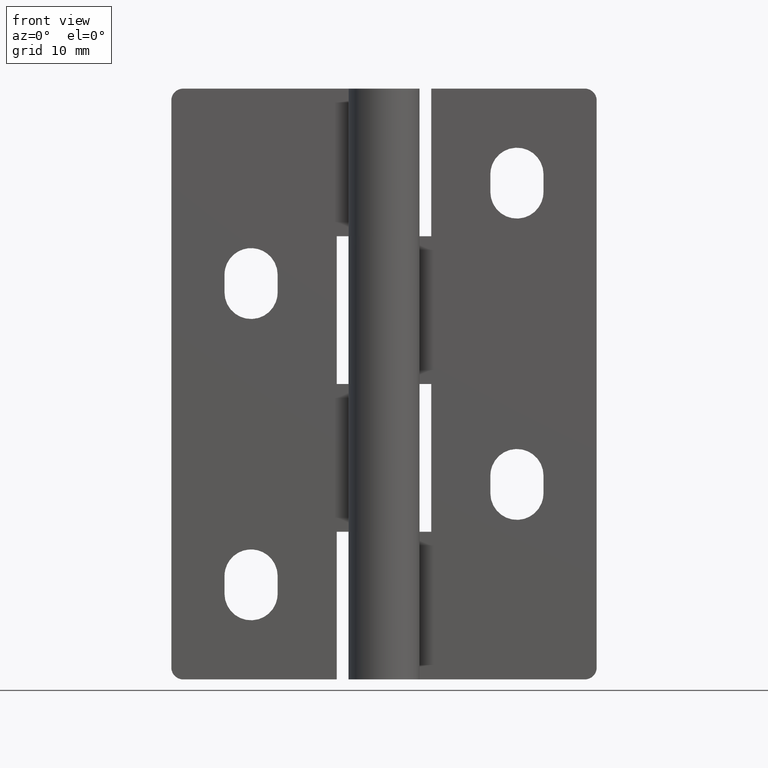
[diagram: clean part render]
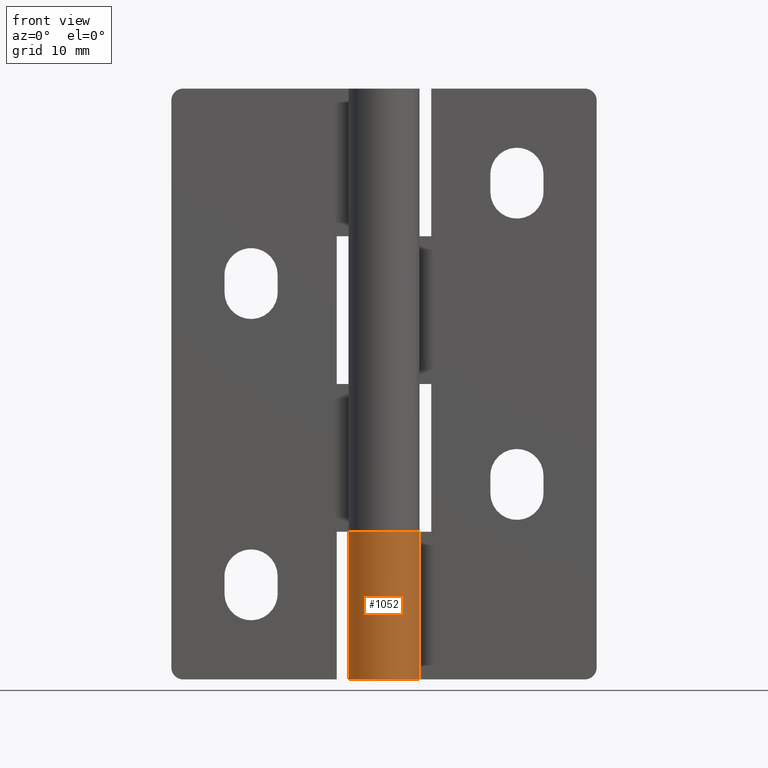
[diagram: same view with one face highlighted and labeled with its STEP entity id]
A machine part, front view. The second image highlights one B-rep face of the part: STEP entity #1052.
In plain terms, the highlighted face is a freeform B-spline surface patch.
Its self-contained STEP definition (entity closure, byte-faithful):
#665=CARTESIAN_POINT('',(-5.510729E-016,3.0,12.500000000000000));
#666=VERTEX_POINT('',#665);
#672=CARTESIAN_POINT('',(2.626309197333780,1.450000000000000,12.500000000000000));
#673=VERTEX_POINT('',#672);
#674=CARTESIAN_POINT('',(0.0,3.0,12.500000000000000));
#675=CARTESIAN_POINT('',(-2.290598042424808,3.0,12.500000000000000));
#676=CARTESIAN_POINT('',(-2.894028888043301,0.790314364775724,12.500000000000000));
#677=CARTESIAN_POINT('',(-3.497459733661794,-1.419371270448550,12.500000000000000));
#678=CARTESIAN_POINT('',(-1.524795068197693,-2.583602136552761,12.500000000000000));
#679=CARTESIAN_POINT('',(0.447869597266408,-3.747833002656974,12.500000000000000));
#680=CARTESIAN_POINT('',(2.090650590886088,-2.151552952364328,12.500000000000000));
#681=CARTESIAN_POINT('',(3.733431584505768,-0.555272902071681,12.500000000000000));
#682=CARTESIAN_POINT('',(2.626309197333781,1.449999999999996,12.500000000000000));
#690=(BOUNDED_CURVE()B_SPLINE_CURVE(2,(#674,#675,#676,#677,#678,#679,#680,#681,#682),.UNSPECIFIED.,.F.,.U.)B_SPLINE_CURVE_WITH_KNOTS((3,2,2,2,3),(0.0,0.250000000000000,0.500000000000000,0.750000000000000,1.0),.UNSPECIFIED.)CURVE()GEOMETRIC_REPRESENTATION_ITEM()RATIONAL_B_SPLINE_CURVE((1.0,0.794807562115481,1.0,0.794807562115481,1.0,0.794807562115481,1.0,0.794807562115481,1.0))REPRESENTATION_ITEM(''));
#691=EDGE_CURVE('',#666,#673,#690,.T.);
#825=CARTESIAN_POINT('',(-5.510729E-016,3.0,0.0));
#826=VERTEX_POINT('',#825);
#861=CARTESIAN_POINT('',(2.626309197333780,1.450000000000000,0.0));
#862=VERTEX_POINT('',#861);
#868=CARTESIAN_POINT('',(2.626309197333780,1.450000000000000,0.0));
#869=CARTESIAN_POINT('',(3.733431584505770,-0.555272902071675,0.0));
#870=CARTESIAN_POINT('',(2.090650590886091,-2.151552952364324,0.0));
#871=CARTESIAN_POINT('',(0.447869597266413,-3.747833002656972,0.0));
#872=CARTESIAN_POINT('',(-1.524795068197689,-2.583602136552764,0.0));
#873=CARTESIAN_POINT('',(-3.497459733661792,-1.419371270448555,0.0));
#874=CARTESIAN_POINT('',(-2.894028888043301,0.790314364775722,0.0));
#875=CARTESIAN_POINT('',(-2.290598042424809,3.000000000000000,0.0));
#876=CARTESIAN_POINT('',(0.0,3.0,0.0));
#884=(BOUNDED_CURVE()B_SPLINE_CURVE(2,(#868,#869,#870,#871,#872,#873,#874,#875,#876),.UNSPECIFIED.,.F.,.U.)B_SPLINE_CURVE_WITH_KNOTS((3,2,2,2,3),(0.0,0.250000000000000,0.500000000000000,0.750000000000000,1.0),.UNSPECIFIED.)CURVE()GEOMETRIC_REPRESENTATION_ITEM()RATIONAL_B_SPLINE_CURVE((1.0,0.794807562115481,1.0,0.794807562115481,1.0,0.794807562115481,1.0,0.794807562115481,1.0))REPRESENTATION_ITEM(''));
#885=EDGE_CURVE('',#862,#826,#884,.T.);
#953=CARTESIAN_POINT('',(2.626309197333780,1.450000000000000,12.500000000000000));
#954=CARTESIAN_POINT('',(2.626309197333780,1.450000000000000,0.0));
#955=QUASI_UNIFORM_CURVE('',1,(#953,#954),.UNSPECIFIED.,.F.,.U.);
#956=EDGE_CURVE('',#673,#862,#955,.T.);
#1020=CARTESIAN_POINT('',(0.026179606495119,2.999885769192513,12.812500000000000));
#1021=CARTESIAN_POINT('',(0.026179606495119,2.999885769192513,-0.320312500000000));
#1022=CARTESIAN_POINT('',(-3.591480617393748,3.031456611678275,12.812500000000000));
#1023=CARTESIAN_POINT('',(-3.591480617393748,3.031456611678275,-0.320312500000000));
#1024=CARTESIAN_POINT('',(-2.952895395395788,-0.529536385766219,12.812500000000000));
#1025=CARTESIAN_POINT('',(-2.952895395395788,-0.529536385766219,-0.320312500000000));
#1026=CARTESIAN_POINT('',(-2.314310173397830,-4.090529383210712,12.812500000000000));
#1027=CARTESIAN_POINT('',(-2.314310173397830,-4.090529383210712,-0.320312500000000));
#1028=CARTESIAN_POINT('',(1.066952285444629,-2.803856776046965,12.812500000000000));
#1029=CARTESIAN_POINT('',(1.066952285444629,-2.803856776046965,-0.320312500000000));
#1030=CARTESIAN_POINT('',(4.448214744287087,-1.517184168883219,12.812500000000000));
#1031=CARTESIAN_POINT('',(4.448214744287087,-1.517184168883219,-0.320312500000000));
#1032=CARTESIAN_POINT('',(2.557920493062278,1.567495694147845,12.812500000000000));
#1033=CARTESIAN_POINT('',(2.557920493062278,1.567495694147845,-0.320312500000000));
#1041=(BOUNDED_SURFACE()B_SPLINE_SURFACE(1,2,((#1020,#1022,#1024,#1026,#1028,#1030,#1032),(#1021,#1023,#1025,#1027,#1029,#1031,#1033)),.UNSPECIFIED.,.F.,.F.,.U.)B_SPLINE_SURFACE_WITH_KNOTS((2,2),(3,2,2,3),(0.0,13.132812500000000),(0.0,5.638246512160404,11.276493024320811,16.914739536481211),.UNSPECIFIED.)GEOMETRIC_REPRESENTATION_ITEM()RATIONAL_B_SPLINE_SURFACE(((1.0,0.638320090924328,1.0,0.638320090924328,1.0,0.638320090924328,1.0),(1.0,0.638320090924328,1.0,0.638320090924328,1.0,0.638320090924328,1.0)))REPRESENTATION_ITEM('')SURFACE());
#1042=ORIENTED_EDGE('',*,*,#956,.F.);
#1043=ORIENTED_EDGE('',*,*,#691,.F.);
#1044=CARTESIAN_POINT('',(-5.510729E-016,3.0,12.500000000000000));
#1045=CARTESIAN_POINT('',(-5.510729E-016,3.0,0.0));
#1046=QUASI_UNIFORM_CURVE('',1,(#1044,#1045),.UNSPECIFIED.,.F.,.U.);
#1047=EDGE_CURVE('',#666,#826,#1046,.T.);
#1048=ORIENTED_EDGE('',*,*,#1047,.T.);
#1049=ORIENTED_EDGE('',*,*,#885,.F.);
#1050=EDGE_LOOP('',(#1042,#1043,#1048,#1049));
#1051=FACE_OUTER_BOUND('',#1050,.T.);
#1052=ADVANCED_FACE('',(#1051),#1041,.T.);